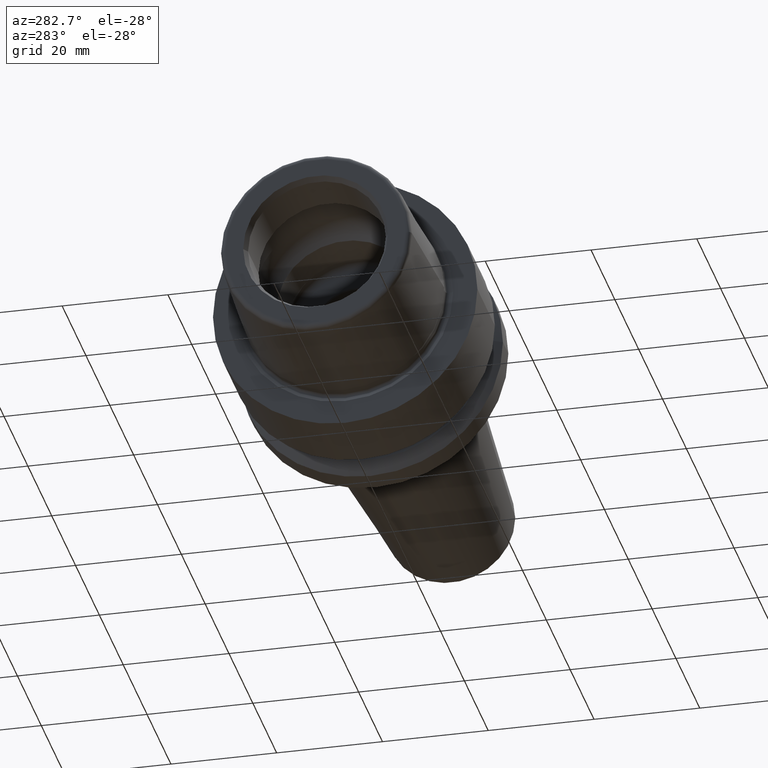
[diagram: clean part render]
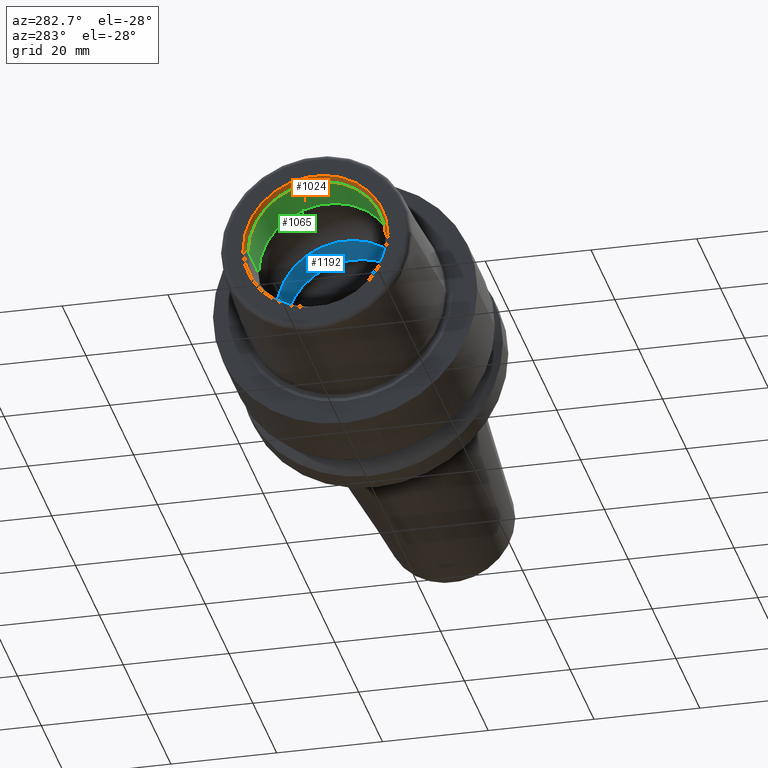
[diagram: same view with three faces highlighted in distinct colors, each labeled with its STEP entity id]
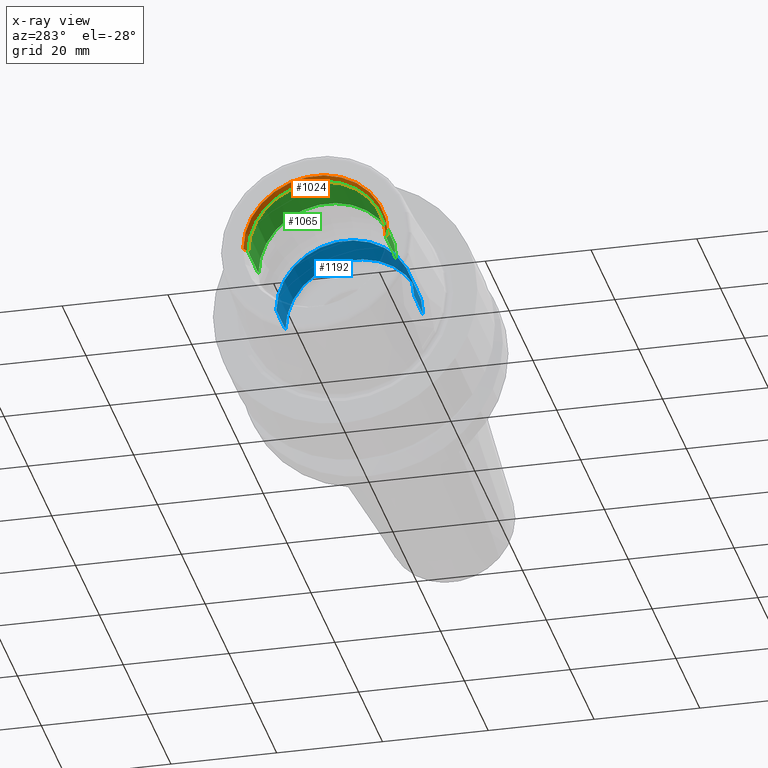
[diagram: x-ray of the same camera — body ghosted, the three highlighted faces saturated]
A machine part, auxiliary view with three faces highlighted in distinct colors.
The next image is the same camera in x-ray (body ghosted, the three faces saturated) — at least one of them is partly hidden behind the body in this view.
Their STEP definitions:

[orange] entity #1024 — the highlighted conical surface has half-angle 30 deg.
#68=CARTESIAN_POINT('',(-2.49E1,0.E0,0.E0));
#69=DIRECTION('',(1.E0,0.E0,0.E0));
#70=DIRECTION('',(0.E0,1.E0,0.E0));
#71=AXIS2_PLACEMENT_3D('',#68,#69,#70);
#78=CARTESIAN_POINT('',(-2.375E1,0.E0,0.E0));
#79=DIRECTION('',(1.E0,0.E0,0.E0));
#80=DIRECTION('',(0.E0,1.E0,0.E0));
#81=AXIS2_PLACEMENT_3D('',#78,#79,#80);
#83=DIRECTION('',(-8.660254037844E-1,5.E-1,0.E0));
#84=VECTOR('',#83,1.327905619136E0);
#85=CARTESIAN_POINT('',(-2.375E1,1.3021E1,0.E0));
#86=LINE('',#85,#84);
#92=DIRECTION('',(-8.660254037844E-1,-5.E-1,0.E0));
#93=VECTOR('',#92,1.327905619136E0);
#94=CARTESIAN_POINT('',(-2.375E1,-1.3021E1,0.E0));
#95=LINE('',#94,#93);
#826=CARTESIAN_POINT('',(-2.375E1,1.3021E1,0.E0));
#827=VERTEX_POINT('',#826);
#838=CARTESIAN_POINT('',(-2.375E1,-1.3021E1,0.E0));
#839=VERTEX_POINT('',#838);
#840=CARTESIAN_POINT('',(-2.49E1,1.368495280957E1,0.E0));
#841=VERTEX_POINT('',#840);
#842=CARTESIAN_POINT('',(-2.49E1,-1.368495280957E1,0.E0));
#843=VERTEX_POINT('',#842);
#1010=CARTESIAN_POINT('',(-2.4325E1,0.E0,0.E0));
#1011=DIRECTION('',(-1.E0,0.E0,0.E0));
#1012=DIRECTION('',(0.E0,1.E0,0.E0));
#1013=AXIS2_PLACEMENT_3D('',#1010,#1011,#1012);
#1014=CONICAL_SURFACE('',#1013,1.335297640478E1,3.E1);
#1016=ORIENTED_EDGE('',*,*,#1015,.T.);
#1017=ORIENTED_EDGE('',*,*,#1003,.T.);
#1019=ORIENTED_EDGE('',*,*,#1018,.F.);
#1021=ORIENTED_EDGE('',*,*,#1020,.F.);
#1022=EDGE_LOOP('',(#1016,#1017,#1019,#1021));
#1023=FACE_OUTER_BOUND('',#1022,.F.);
#1024=ADVANCED_FACE('',(#1023),#1014,.F.);
#72=CIRCLE('',#71,1.368495280957E1);
#82=CIRCLE('',#81,1.3021E1);
#1003=EDGE_CURVE('',#841,#843,#72,.T.);
#1015=EDGE_CURVE('',#827,#841,#86,.T.);
#1018=EDGE_CURVE('',#839,#843,#95,.T.);
#1020=EDGE_CURVE('',#827,#839,#82,.T.);

[blue] entity #1192 — the highlighted cylindrical surface (partial cylindrical patch) has radius 13.021 mm, axis along (1, 0, 0).
#185=CARTESIAN_POINT('',(0.E0,0.E0,0.E0));
#186=DIRECTION('',(1.E0,0.E0,0.E0));
#187=DIRECTION('',(0.E0,1.E0,0.E0));
#188=AXIS2_PLACEMENT_3D('',#185,#186,#187);
#190=CARTESIAN_POINT('',(7.614844924580E0,0.E0,0.E0));
#191=DIRECTION('',(1.E0,0.E0,0.E0));
#192=DIRECTION('',(0.E0,1.E0,0.E0));
#193=AXIS2_PLACEMENT_3D('',#190,#191,#192);
#195=DIRECTION('',(-1.E0,0.E0,0.E0));
#196=VECTOR('',#195,7.614844924580E0);
#197=CARTESIAN_POINT('',(7.614844924580E0,1.3021E1,0.E0));
#198=LINE('',#197,#196);
#204=DIRECTION('',(-1.E0,0.E0,0.E0));
#205=VECTOR('',#204,7.614844924580E0);
#206=CARTESIAN_POINT('',(7.614844924580E0,-1.3021E1,0.E0));
#207=LINE('',#206,#205);
#769=CARTESIAN_POINT('',(7.614844924580E0,1.3021E1,0.E0));
#771=VERTEX_POINT('',#769);
#773=CARTESIAN_POINT('',(7.614844924580E0,-1.3021E1,0.E0));
#775=VERTEX_POINT('',#773);
#816=CARTESIAN_POINT('',(0.E0,1.3021E1,0.E0));
#817=VERTEX_POINT('',#816);
#828=CARTESIAN_POINT('',(0.E0,-1.3021E1,0.E0));
#829=VERTEX_POINT('',#828);
#1178=CARTESIAN_POINT('',(-2.66425E1,0.E0,0.E0));
#1179=DIRECTION('',(1.E0,0.E0,0.E0));
#1180=DIRECTION('',(0.E0,-1.E0,0.E0));
#1181=AXIS2_PLACEMENT_3D('',#1178,#1179,#1180);
#1182=CYLINDRICAL_SURFACE('',#1181,1.3021E1);
#1184=ORIENTED_EDGE('',*,*,#1183,.T.);
#1185=ORIENTED_EDGE('',*,*,#1173,.T.);
#1187=ORIENTED_EDGE('',*,*,#1186,.F.);
#1189=ORIENTED_EDGE('',*,*,#1188,.F.);
#1190=EDGE_LOOP('',(#1184,#1185,#1187,#1189));
#1191=FACE_OUTER_BOUND('',#1190,.F.);
#1192=ADVANCED_FACE('',(#1191),#1182,.F.);
#189=CIRCLE('',#188,1.3021E1);
#194=CIRCLE('',#193,1.3021E1);
#1173=EDGE_CURVE('',#817,#829,#189,.T.);
#1183=EDGE_CURVE('',#771,#817,#198,.T.);
#1186=EDGE_CURVE('',#775,#829,#207,.T.);
#1188=EDGE_CURVE('',#771,#775,#194,.T.);

[green] entity #1065 — the highlighted cylindrical surface (partial cylindrical patch) has radius 13.021 mm, axis along (1, 0, 0).
#78=CARTESIAN_POINT('',(-2.375E1,0.E0,0.E0));
#79=DIRECTION('',(1.E0,0.E0,0.E0));
#80=DIRECTION('',(0.E0,1.E0,0.E0));
#81=AXIS2_PLACEMENT_3D('',#78,#79,#80);
#96=DIRECTION('',(-1.E0,0.E0,0.E0));
#97=VECTOR('',#96,8.766098951869E0);
#98=CARTESIAN_POINT('',(-1.498390104813E1,1.3021E1,0.E0));
#99=LINE('',#98,#97);
#105=DIRECTION('',(-1.E0,0.E0,0.E0));
#106=VECTOR('',#105,8.766098951869E0);
#107=CARTESIAN_POINT('',(-1.498390104813E1,-1.3021E1,0.E0));
#108=LINE('',#107,#106);
#109=CARTESIAN_POINT('',(-1.498390104813E1,0.E0,0.E0));
#110=DIRECTION('',(1.E0,0.E0,0.E0));
#111=DIRECTION('',(0.E0,1.E0,0.E0));
#112=AXIS2_PLACEMENT_3D('',#109,#110,#111);
#824=CARTESIAN_POINT('',(-1.498390104813E1,1.3021E1,0.E0));
#825=VERTEX_POINT('',#824);
#826=CARTESIAN_POINT('',(-2.375E1,1.3021E1,0.E0));
#827=VERTEX_POINT('',#826);
#836=CARTESIAN_POINT('',(-1.498390104813E1,-1.3021E1,0.E0));
#837=VERTEX_POINT('',#836);
#838=CARTESIAN_POINT('',(-2.375E1,-1.3021E1,0.E0));
#839=VERTEX_POINT('',#838);
#1053=CARTESIAN_POINT('',(-2.66425E1,0.E0,0.E0));
#1054=DIRECTION('',(1.E0,0.E0,0.E0));
#1055=DIRECTION('',(0.E0,-1.E0,0.E0));
#1056=AXIS2_PLACEMENT_3D('',#1053,#1054,#1055);
#1057=CYLINDRICAL_SURFACE('',#1056,1.3021E1);
#1058=ORIENTED_EDGE('',*,*,#1043,.T.);
#1059=ORIENTED_EDGE('',*,*,#1020,.T.);
#1060=ORIENTED_EDGE('',*,*,#1047,.F.);
#1062=ORIENTED_EDGE('',*,*,#1061,.F.);
#1063=EDGE_LOOP('',(#1058,#1059,#1060,#1062));
#1064=FACE_OUTER_BOUND('',#1063,.F.);
#1065=ADVANCED_FACE('',(#1064),#1057,.F.);
#82=CIRCLE('',#81,1.3021E1);
#113=CIRCLE('',#112,1.3021E1);
#1020=EDGE_CURVE('',#827,#839,#82,.T.);
#1043=EDGE_CURVE('',#825,#827,#99,.T.);
#1047=EDGE_CURVE('',#837,#839,#108,.T.);
#1061=EDGE_CURVE('',#825,#837,#113,.T.);